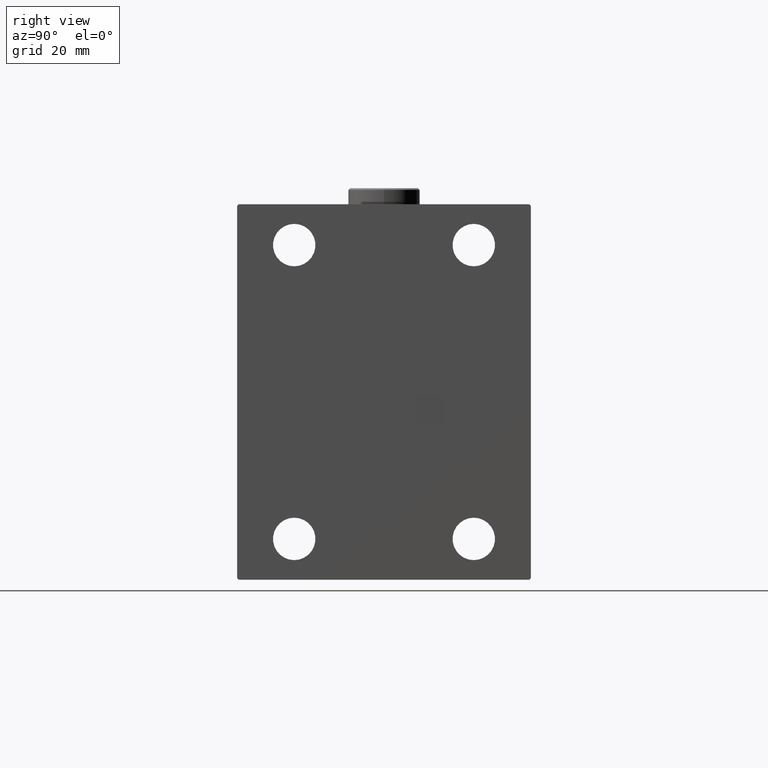
[diagram: clean part render]
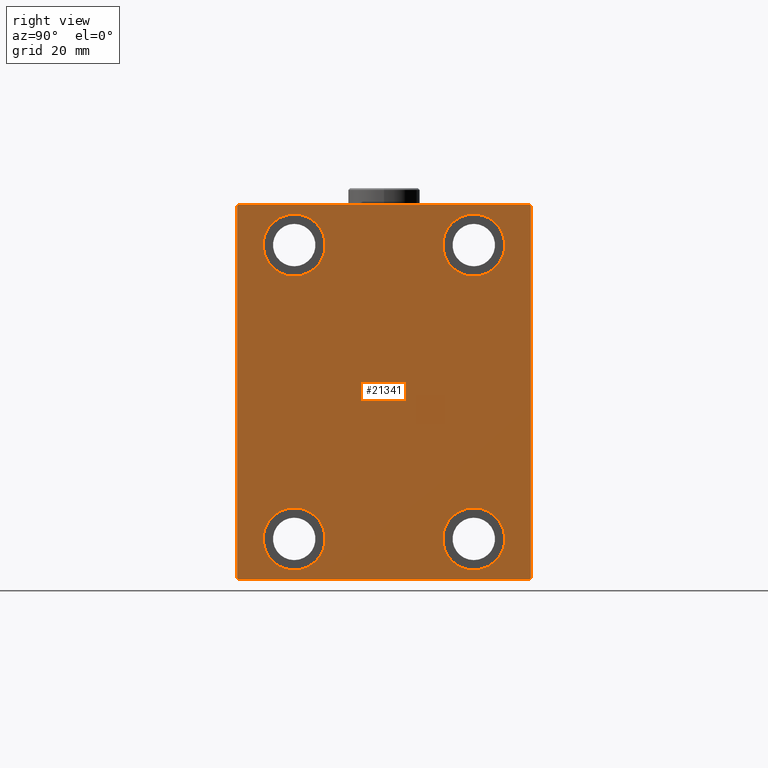
[diagram: same view with one face highlighted and labeled with its STEP entity id]
A machine part, right view. The second image highlights one B-rep face of the part: STEP entity #21341.
In plain terms, the highlighted planar face has unit normal (1, 0, 0).
Its self-contained STEP definition (entity closure, byte-faithful):
#32 = CARTESIAN_POINT ( 'NONE',  ( 108.0000000000000000, -51.00000000000001421, -51.00000000000001421 ) ) ;
#944 = VERTEX_POINT ( 'NONE', #23649 ) ;
#1015 = VECTOR ( 'NONE', #30160, 1000.000000000000000 ) ;
#1070 = VERTEX_POINT ( 'NONE', #31497 ) ;
#1256 = CIRCLE ( 'NONE', #7318, 9.500000000000001776 ) ;
#2649 = EDGE_CURVE ( 'NONE', #18493, #4220, #41853, .T. ) ;
#2652 = DIRECTION ( 'NONE',  ( -1.000000000000000000, -0.000000000000000000, -0.000000000000000000 ) ) ;
#3339 = ORIENTED_EDGE ( 'NONE', *, *, #46714, .T. ) ;
#3507 = EDGE_CURVE ( 'NONE', #16658, #13405, #36562, .T. ) ;
#4220 = VERTEX_POINT ( 'NONE', #16913 ) ;
#4305 = LINE ( 'NONE', #32, #27536 ) ;
#4325 = AXIS2_PLACEMENT_3D ( 'NONE', #7162, #21675, #36388 ) ;
#4509 = ORIENTED_EDGE ( 'NONE', *, *, #19747, .T. ) ;
#4512 = DIRECTION ( 'NONE',  ( -0.000000000000000000, 0.7071067811865474617, 0.7071067811865474617 ) ) ;
#4610 = DIRECTION ( 'NONE',  ( 0.000000000000000000, 0.000000000000000000, 1.000000000000000000 ) ) ;
#4908 = CIRCLE ( 'NONE', #10252, 9.500000000000001776 ) ;
#5177 = LINE ( 'NONE', #16105, #7107 ) ;
#5540 = CARTESIAN_POINT ( 'NONE',  ( 108.0000000000000000, -45.00000000000000000, -57.50000000000000711 ) ) ;
#6116 = CARTESIAN_POINT ( 'NONE',  ( 108.0000000000000000, 27.49999999999998934, -44.99999999999998579 ) ) ;
#6146 = CARTESIAN_POINT ( 'NONE',  ( 108.0000000000000000, 45.00000000000001421, -57.00000000000003553 ) ) ;
#6238 = VERTEX_POINT ( 'NONE', #24487 ) ;
#7107 = VECTOR ( 'NONE', #30624, 1000.000000000000114 ) ;
#7162 = CARTESIAN_POINT ( 'NONE',  ( 108.0000000000000000, 0.000000000000000000, 0.000000000000000000 ) ) ;
#7317 = ORIENTED_EDGE ( 'NONE', *, *, #2649, .T. ) ;
#7318 = AXIS2_PLACEMENT_3D ( 'NONE', #6116, #27298, #13030 ) ;
#8029 = ORIENTED_EDGE ( 'NONE', *, *, #15205, .T. ) ;
#8646 = VECTOR ( 'NONE', #33376, 1000.000000000000000 ) ;
#8989 = CARTESIAN_POINT ( 'NONE',  ( 108.0000000000000000, 45.00000000000001421, -57.50000000000000711 ) ) ;
#9554 = CIRCLE ( 'NONE', #11837, 9.500000000000001776 ) ;
#9572 = EDGE_LOOP ( 'NONE', ( #26152, #38467 ) ) ;
#9832 = EDGE_CURVE ( 'NONE', #27675, #6238, #4305, .T. ) ;
#10221 = DIRECTION ( 'NONE',  ( 0.000000000000000000, 0.000000000000000000, 1.000000000000000000 ) ) ;
#10252 = AXIS2_PLACEMENT_3D ( 'NONE', #15791, #29364, #4610 ) ;
#11139 = CARTESIAN_POINT ( 'NONE',  ( 108.0000000000000000, -45.00000000000000000, 56.99999999999999289 ) ) ;
#11156 = DIRECTION ( 'NONE',  ( -1.000000000000000000, -0.000000000000000000, -0.000000000000000000 ) ) ;
#11524 = EDGE_CURVE ( 'NONE', #4220, #18493, #13173, .T. ) ;
#11593 = CIRCLE ( 'NONE', #38151, 9.500000000000001776 ) ;
#11823 = DIRECTION ( 'NONE',  ( -1.000000000000000000, -0.000000000000000000, -0.000000000000000000 ) ) ;
#11837 = AXIS2_PLACEMENT_3D ( 'NONE', #26457, #29780, #19073 ) ;
#12145 = ORIENTED_EDGE ( 'NONE', *, *, #36317, .T. ) ;
#12233 = EDGE_CURVE ( 'NONE', #46061, #46308, #37732, .T. ) ;
#12318 = EDGE_LOOP ( 'NONE', ( #7317, #38431 ) ) ;
#12418 = DIRECTION ( 'NONE',  ( 0.000000000000000000, 0.000000000000000000, 1.000000000000000000 ) ) ;
#12755 = EDGE_CURVE ( 'NONE', #6238, #944, #26951, .T. ) ;
#13030 = DIRECTION ( 'NONE',  ( 0.000000000000000000, 0.000000000000000000, 1.000000000000000000 ) ) ;
#13173 = CIRCLE ( 'NONE', #24572, 9.500000000000001776 ) ;
#13356 = DIRECTION ( 'NONE',  ( 0.000000000000000000, 0.000000000000000000, -1.000000000000000000 ) ) ;
#13405 = VERTEX_POINT ( 'NONE', #33380 ) ;
#13736 = VERTEX_POINT ( 'NONE', #19533 ) ;
#13925 = ORIENTED_EDGE ( 'NONE', *, *, #3507, .T. ) ;
#14501 = VERTEX_POINT ( 'NONE', #43100 ) ;
#14862 = DIRECTION ( 'NONE',  ( 0.000000000000000000, -1.000000000000000000, -1.541976423090495387E-16 ) ) ;
#15017 = FACE_BOUND ( 'NONE', #46387, .T. ) ;
#15205 = EDGE_CURVE ( 'NONE', #14501, #13736, #41225, .T. ) ;
#15248 = EDGE_CURVE ( 'NONE', #13405, #16658, #4908, .T. ) ;
#15582 = CARTESIAN_POINT ( 'NONE',  ( 108.0000000000000000, -27.49999999999998934, 45.00000000000000711 ) ) ;
#15791 = CARTESIAN_POINT ( 'NONE',  ( 108.0000000000000000, 27.50000000000001066, 45.00000000000000711 ) ) ;
#16105 = CARTESIAN_POINT ( 'NONE',  ( 108.0000000000000000, -51.00000000000000000, 51.00000000000000000 ) ) ;
#16523 = DIRECTION ( 'NONE',  ( 0.000000000000000000, 0.000000000000000000, 1.000000000000000000 ) ) ;
#16658 = VERTEX_POINT ( 'NONE', #46843 ) ;
#16913 = CARTESIAN_POINT ( 'NONE',  ( 108.0000000000000000, -27.49999999999998934, 54.50000000000000711 ) ) ;
#17161 = LINE ( 'NONE', #28097, #20760 ) ;
#17392 = CARTESIAN_POINT ( 'NONE',  ( 108.0000000000000000, -27.49999999999998934, 35.50000000000000711 ) ) ;
#18128 = CARTESIAN_POINT ( 'NONE',  ( 108.0000000000000000, 45.00000000000000000, 57.00000000000000711 ) ) ;
#18493 = VERTEX_POINT ( 'NONE', #17392 ) ;
#19073 = DIRECTION ( 'NONE',  ( 0.000000000000000000, 0.000000000000000000, 1.000000000000000000 ) ) ;
#19533 = CARTESIAN_POINT ( 'NONE',  ( 108.0000000000000000, -44.49999999999997158, 57.49999999999999289 ) ) ;
#19747 = EDGE_CURVE ( 'NONE', #43607, #44115, #1256, .T. ) ;
#20760 = VECTOR ( 'NONE', #45674, 1000.000000000000114 ) ;
#21341 = ADVANCED_FACE ( 'NONE', ( #15017, #39946, #21908, #29512, #46860 ), #40190, .T. ) ;
#21675 = DIRECTION ( 'NONE',  ( 1.000000000000000000, 0.000000000000000000, 0.000000000000000000 ) ) ;
#21849 = CARTESIAN_POINT ( 'NONE',  ( 108.0000000000000000, 27.50000000000001066, 45.00000000000000711 ) ) ;
#21908 = FACE_BOUND ( 'NONE', #39504, .T. ) ;
#22018 = CARTESIAN_POINT ( 'NONE',  ( 108.0000000000000000, 27.49999999999998934, -54.49999999999998579 ) ) ;
#22874 = CARTESIAN_POINT ( 'NONE',  ( 108.0000000000000000, -45.00000000000000000, 57.49999999999999289 ) ) ;
#22915 = AXIS2_PLACEMENT_3D ( 'NONE', #21849, #11156, #10221 ) ;
#23649 = CARTESIAN_POINT ( 'NONE',  ( 108.0000000000000000, 44.50000000000001421, -57.50000000000000711 ) ) ;
#24487 = CARTESIAN_POINT ( 'NONE',  ( 108.0000000000000000, -44.50000000000002842, -57.50000000000000711 ) ) ;
#24572 = AXIS2_PLACEMENT_3D ( 'NONE', #41519, #11823, #26315 ) ;
#25675 = VERTEX_POINT ( 'NONE', #40976 ) ;
#25849 = ORIENTED_EDGE ( 'NONE', *, *, #35953, .T. ) ;
#25976 = VECTOR ( 'NONE', #13356, 1000.000000000000000 ) ;
#26152 = ORIENTED_EDGE ( 'NONE', *, *, #34780, .T. ) ;
#26154 = CARTESIAN_POINT ( 'NONE',  ( 108.0000000000000000, -45.00000000000000000, -57.00000000000003553 ) ) ;
#26187 = DIRECTION ( 'NONE',  ( -0.000000000000000000, 0.7071067811865474617, -0.7071067811865474617 ) ) ;
#26315 = DIRECTION ( 'NONE',  ( 0.000000000000000000, 0.000000000000000000, 1.000000000000000000 ) ) ;
#26457 = CARTESIAN_POINT ( 'NONE',  ( 108.0000000000000000, 27.49999999999998934, -44.99999999999998579 ) ) ;
#26868 = LINE ( 'NONE', #40652, #33841 ) ;
#26951 = LINE ( 'NONE', #5540, #8646 ) ;
#27298 = DIRECTION ( 'NONE',  ( -1.000000000000000000, -0.000000000000000000, -0.000000000000000000 ) ) ;
#27387 = CARTESIAN_POINT ( 'NONE',  ( 108.0000000000000000, -27.50000000000000000, -44.99999999999998579 ) ) ;
#27536 = VECTOR ( 'NONE', #26187, 1000.000000000000114 ) ;
#27631 = DIRECTION ( 'NONE',  ( 0.000000000000000000, 0.000000000000000000, 1.000000000000000000 ) ) ;
#27675 = VERTEX_POINT ( 'NONE', #26154 ) ;
#27939 = VERTEX_POINT ( 'NONE', #11139 ) ;
#28097 = CARTESIAN_POINT ( 'NONE',  ( 108.0000000000000000, 51.00000000000001421, 51.00000000000001421 ) ) ;
#28935 = AXIS2_PLACEMENT_3D ( 'NONE', #15582, #41005, #16523 ) ;
#29364 = DIRECTION ( 'NONE',  ( -1.000000000000000000, -0.000000000000000000, -0.000000000000000000 ) ) ;
#29512 = FACE_BOUND ( 'NONE', #9572, .T. ) ;
#29767 = ORIENTED_EDGE ( 'NONE', *, *, #46342, .T. ) ;
#29780 = DIRECTION ( 'NONE',  ( -1.000000000000000000, -0.000000000000000000, -0.000000000000000000 ) ) ;
#29983 = ORIENTED_EDGE ( 'NONE', *, *, #15248, .T. ) ;
#30160 = DIRECTION ( 'NONE',  ( 0.000000000000000000, -1.206764157201257045E-16, 1.000000000000000000 ) ) ;
#30221 = CARTESIAN_POINT ( 'NONE',  ( 108.0000000000000000, 27.49999999999998934, -35.49999999999998579 ) ) ;
#30624 = DIRECTION ( 'NONE',  ( 0.000000000000000000, -0.7071067811865474617, -0.7071067811865474617 ) ) ;
#30811 = AXIS2_PLACEMENT_3D ( 'NONE', #27387, #2652, #27631 ) ;
#31080 = ORIENTED_EDGE ( 'NONE', *, *, #12755, .T. ) ;
#31497 = CARTESIAN_POINT ( 'NONE',  ( 108.0000000000000000, -27.50000000000000000, -54.49999999999998579 ) ) ;
#33327 = EDGE_CURVE ( 'NONE', #27939, #27675, #40933, .T. ) ;
#33376 = DIRECTION ( 'NONE',  ( 0.000000000000000000, 1.000000000000000000, 0.000000000000000000 ) ) ;
#33380 = CARTESIAN_POINT ( 'NONE',  ( 108.0000000000000000, 27.50000000000001066, 54.50000000000000711 ) ) ;
#33391 = CARTESIAN_POINT ( 'NONE',  ( 108.0000000000000000, 45.00000000000000000, 57.50000000000000711 ) ) ;
#33841 = VECTOR ( 'NONE', #4512, 1000.000000000000114 ) ;
#34780 = EDGE_CURVE ( 'NONE', #1070, #25675, #11593, .T. ) ;
#35953 = EDGE_CURVE ( 'NONE', #46308, #14501, #17161, .T. ) ;
#36317 = EDGE_CURVE ( 'NONE', #13736, #27939, #5177, .T. ) ;
#36388 = DIRECTION ( 'NONE',  ( 0.000000000000000000, 0.000000000000000000, -1.000000000000000000 ) ) ;
#36562 = CIRCLE ( 'NONE', #22915, 9.500000000000001776 ) ;
#37311 = ORIENTED_EDGE ( 'NONE', *, *, #9832, .T. ) ;
#37732 = LINE ( 'NONE', #8989, #1015 ) ;
#38050 = CARTESIAN_POINT ( 'NONE',  ( 108.0000000000000000, -27.50000000000000000, -44.99999999999998579 ) ) ;
#38151 = AXIS2_PLACEMENT_3D ( 'NONE', #38050, #41651, #12418 ) ;
#38431 = ORIENTED_EDGE ( 'NONE', *, *, #11524, .T. ) ;
#38467 = ORIENTED_EDGE ( 'NONE', *, *, #46469, .T. ) ;
#39504 = EDGE_LOOP ( 'NONE', ( #13925, #29983 ) ) ;
#39946 = FACE_BOUND ( 'NONE', #12318, .T. ) ;
#40190 = PLANE ( 'NONE',  #4325 ) ;
#40652 = CARTESIAN_POINT ( 'NONE',  ( 108.0000000000000000, 51.00000000000001421, -51.00000000000001421 ) ) ;
#40704 = EDGE_LOOP ( 'NONE', ( #8029, #12145, #44842, #37311, #31080, #3339, #43819, #25849 ) ) ;
#40933 = LINE ( 'NONE', #22874, #25976 ) ;
#40976 = CARTESIAN_POINT ( 'NONE',  ( 108.0000000000000000, -27.50000000000000000, -35.49999999999998579 ) ) ;
#41005 = DIRECTION ( 'NONE',  ( -1.000000000000000000, -0.000000000000000000, -0.000000000000000000 ) ) ;
#41225 = LINE ( 'NONE', #33391, #43641 ) ;
#41519 = CARTESIAN_POINT ( 'NONE',  ( 108.0000000000000000, -27.49999999999998934, 45.00000000000000711 ) ) ;
#41651 = DIRECTION ( 'NONE',  ( -1.000000000000000000, -0.000000000000000000, -0.000000000000000000 ) ) ;
#41853 = CIRCLE ( 'NONE', #28935, 9.500000000000001776 ) ;
#43100 = CARTESIAN_POINT ( 'NONE',  ( 108.0000000000000000, 44.50000000000002842, 57.50000000000000711 ) ) ;
#43607 = VERTEX_POINT ( 'NONE', #22018 ) ;
#43641 = VECTOR ( 'NONE', #14862, 1000.000000000000000 ) ;
#43819 = ORIENTED_EDGE ( 'NONE', *, *, #12233, .T. ) ;
#44115 = VERTEX_POINT ( 'NONE', #30221 ) ;
#44472 = CIRCLE ( 'NONE', #30811, 9.500000000000001776 ) ;
#44842 = ORIENTED_EDGE ( 'NONE', *, *, #33327, .T. ) ;
#45674 = DIRECTION ( 'NONE',  ( -0.000000000000000000, -0.7071067811865474617, 0.7071067811865474617 ) ) ;
#46061 = VERTEX_POINT ( 'NONE', #6146 ) ;
#46308 = VERTEX_POINT ( 'NONE', #18128 ) ;
#46342 = EDGE_CURVE ( 'NONE', #44115, #43607, #9554, .T. ) ;
#46387 = EDGE_LOOP ( 'NONE', ( #4509, #29767 ) ) ;
#46469 = EDGE_CURVE ( 'NONE', #25675, #1070, #44472, .T. ) ;
#46714 = EDGE_CURVE ( 'NONE', #944, #46061, #26868, .T. ) ;
#46843 = CARTESIAN_POINT ( 'NONE',  ( 108.0000000000000000, 27.50000000000001066, 35.50000000000000711 ) ) ;
#46860 = FACE_OUTER_BOUND ( 'NONE', #40704, .T. ) ;